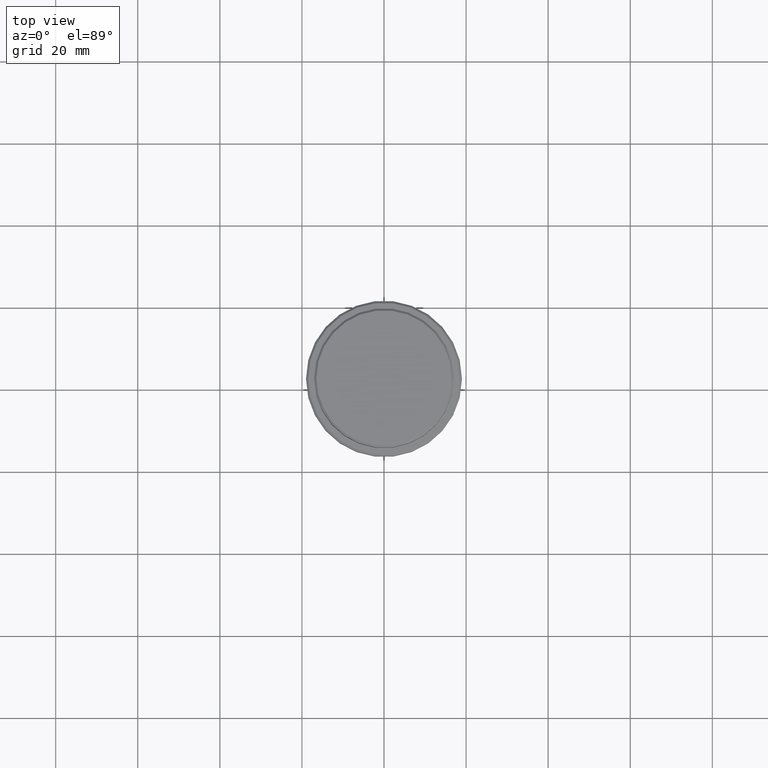
[diagram: clean part render]
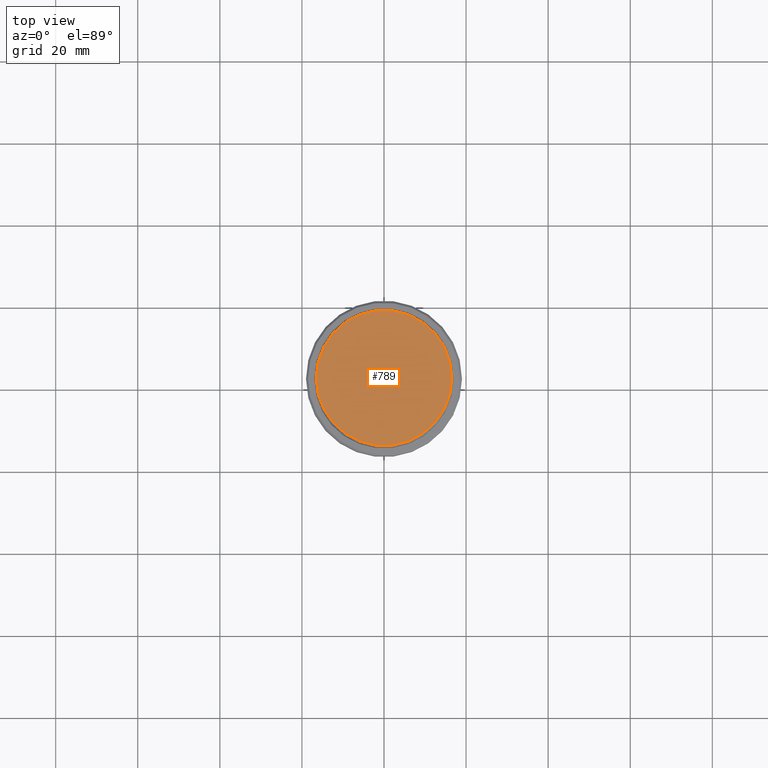
[diagram: same view with one face highlighted and labeled with its STEP entity id]
A machine part, top view. The second image highlights one B-rep face of the part: STEP entity #789.
In plain terms, the highlighted planar face has unit normal (0, -0, 1).
Its self-contained STEP definition (entity closure, byte-faithful):
#210 = AXIS2_PLACEMENT_3D ( 'NONE', #442, #1336, #380 ) ;
#268 = AXIS2_PLACEMENT_3D ( 'NONE', #1273, #1156, #1037 ) ;
#380 = DIRECTION ( 'NONE',  ( 1.000000000000000000, 0.000000000000000000, 0.000000000000000000 ) ) ;
#442 = CARTESIAN_POINT ( 'NONE',  ( 0.000000000000000000, 0.000000000000000000, 0.000000000000000000 ) ) ;
#461 = ORIENTED_EDGE ( 'NONE', *, *, #982, .T. ) ;
#552 = VERTEX_POINT ( 'NONE', #867 ) ;
#596 = CARTESIAN_POINT ( 'NONE',  ( 0.000000000000000000, 0.000000000000000000, 0.000000000000000000 ) ) ;
#598 = ORIENTED_EDGE ( 'NONE', *, *, #680, .T. ) ;
#638 = VERTEX_POINT ( 'NONE', #1045 ) ;
#680 = EDGE_CURVE ( 'NONE', #552, #638, #741, .T. ) ;
#684 = PLANE ( 'NONE',  #210 ) ;
#741 = CIRCLE ( 'NONE', #268, 16.49999999999998579 ) ;
#789 = ADVANCED_FACE ( 'NONE', ( #1125 ), #684, .T. ) ;
#816 = DIRECTION ( 'NONE',  ( 1.000000000000000000, 0.000000000000000000, 0.000000000000000000 ) ) ;
#867 = CARTESIAN_POINT ( 'NONE',  ( 16.49999999999998579, 2.051283388571815309E-15, 0.000000000000000000 ) ) ;
#903 = AXIS2_PLACEMENT_3D ( 'NONE', #596, #1184, #816 ) ;
#982 = EDGE_CURVE ( 'NONE', #638, #552, #1017, .T. ) ;
#1017 = CIRCLE ( 'NONE', #903, 16.49999999999998579 ) ;
#1037 = DIRECTION ( 'NONE',  ( 1.000000000000000000, 0.000000000000000000, 0.000000000000000000 ) ) ;
#1045 = CARTESIAN_POINT ( 'NONE',  ( -16.49999999999998579, 0.000000000000000000, 0.000000000000000000 ) ) ;
#1125 = FACE_OUTER_BOUND ( 'NONE', #1266, .T. ) ;
#1156 = DIRECTION ( 'NONE',  ( -0.000000000000000000, -0.000000000000000000, 1.000000000000000000 ) ) ;
#1184 = DIRECTION ( 'NONE',  ( -0.000000000000000000, -0.000000000000000000, 1.000000000000000000 ) ) ;
#1266 = EDGE_LOOP ( 'NONE', ( #461, #598 ) ) ;
#1273 = CARTESIAN_POINT ( 'NONE',  ( 0.000000000000000000, 0.000000000000000000, 0.000000000000000000 ) ) ;
#1336 = DIRECTION ( 'NONE',  ( 0.000000000000000000, -0.000000000000000000, 1.000000000000000000 ) ) ;